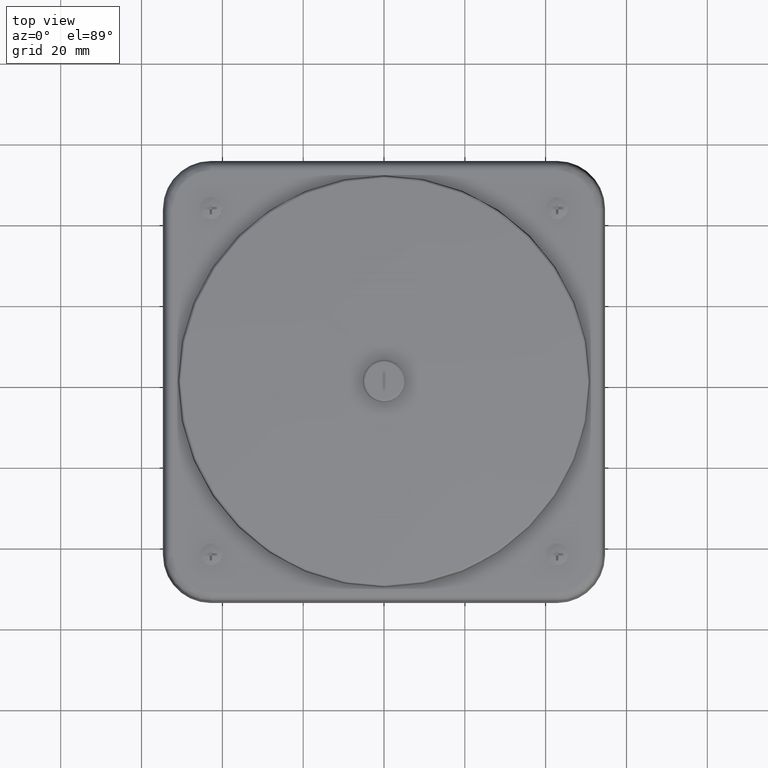
[diagram: clean part render]
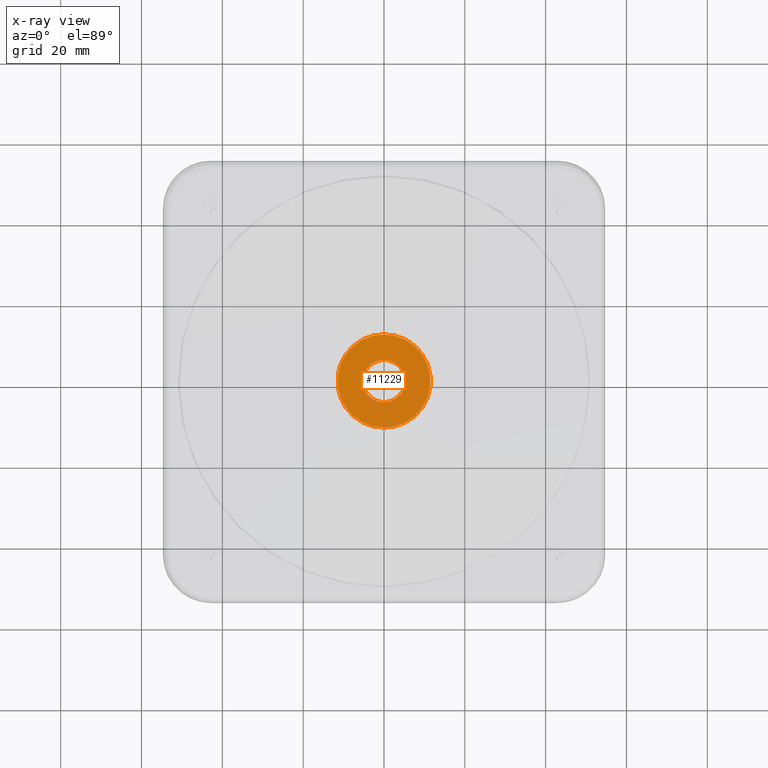
[diagram: x-ray — body ghosted, one internal face saturated and labeled with its STEP entity id]
A machine part, top view, then the same camera in x-ray: the body is ghosted and one INTERNAL B-rep face — a face not visible from any outside direction — is saturated and labeled: STEP entity #11229.
In plain terms, the highlighted planar face has unit normal (0, 0, 1).
Its self-contained STEP definition (entity closure, byte-faithful):
#162 = AXIS2_PLACEMENT_3D ( 'NONE', #4497, #7885, #12897 ) ;
#2699 = EDGE_LOOP ( 'NONE', ( #18174, #11451 ) ) ;
#2830 = DIRECTION ( 'NONE',  ( 1.000000000000000000, 0.000000000000000000, 0.000000000000000000 ) ) ;
#3633 = EDGE_CURVE ( 'NONE', #6493, #6041, #7520, .T. ) ;
#4132 = CARTESIAN_POINT ( 'NONE',  ( -2.731847993664263613E-15, -5.463695987328543200E-16, 2.559339538721059348 ) ) ;
#4497 = CARTESIAN_POINT ( 'NONE',  ( -2.731847993666074838E-15, -5.435836013389566810E-16, 2.559339538721059348 ) ) ;
#4888 = AXIS2_PLACEMENT_3D ( 'NONE', #13885, #10374, #13770 ) ;
#5012 = CARTESIAN_POINT ( 'NONE',  ( 0.2058933543126763577, 2.825358857238343151E-15, 2.559339538721795204 ) ) ;
#6041 = VERTEX_POINT ( 'NONE', #19875 ) ;
#6493 = VERTEX_POINT ( 'NONE', #14007 ) ;
#7520 = CIRCLE ( 'NONE', #162, 0.4544527542132086317 ) ;
#7580 = DIRECTION ( 'NONE',  ( 0.000000000000000000, 0.000000000000000000, -1.000000000000000000 ) ) ;
#7885 = DIRECTION ( 'NONE',  ( 1.195140789863510099E-25, -1.836909530700119911E-16, 1.000000000000000000 ) ) ;
#9393 = DIRECTION ( 'NONE',  ( 0.000000000000000000, 0.000000000000000000, -1.000000000000000000 ) ) ;
#9801 = EDGE_CURVE ( 'NONE', #6041, #6493, #11493, .T. ) ;
#10099 = CARTESIAN_POINT ( 'NONE',  ( -0.2058933543126819643, 2.800144193505869651E-15, 2.559339538721795204 ) ) ;
#10374 = DIRECTION ( 'NONE',  ( 1.195140789863510099E-25, -1.836909530700119911E-16, 1.000000000000000000 ) ) ;
#11229 = ADVANCED_FACE ( 'NONE', ( #15734, #14080 ), #19150, .T. ) ;
#11451 = ORIENTED_EDGE ( 'NONE', *, *, #3633, .T. ) ;
#11485 = ORIENTED_EDGE ( 'NONE', *, *, #13769, .T. ) ;
#11493 = CIRCLE ( 'NONE', #4888, 0.4544527542132086317 ) ;
#12897 = DIRECTION ( 'NONE',  ( 0.000000000000000000, 1.000000000000000000, 0.000000000000000000 ) ) ;
#13326 = ORIENTED_EDGE ( 'NONE', *, *, #13431, .T. ) ;
#13431 = EDGE_CURVE ( 'NONE', #16602, #17872, #15978, .T. ) ;
#13769 = EDGE_CURVE ( 'NONE', #17872, #16602, #19158, .T. ) ;
#13770 = DIRECTION ( 'NONE',  ( 0.000000000000000000, 1.000000000000000000, 0.000000000000000000 ) ) ;
#13885 = CARTESIAN_POINT ( 'NONE',  ( -2.731847993666074838E-15, -5.435836013389566810E-16, 2.559339538721059348 ) ) ;
#14007 = CARTESIAN_POINT ( 'NONE',  ( -2.956814883576456901E-10, 0.4544527542132086317, 2.559339538721059348 ) ) ;
#14080 = FACE_BOUND ( 'NONE', #19720, .T. ) ;
#14459 = CARTESIAN_POINT ( 'NONE',  ( -2.797412345512204431E-15, 2.800144193505869651E-15, 2.559339538721795204 ) ) ;
#15536 = AXIS2_PLACEMENT_3D ( 'NONE', #4132, #20007, #2830 ) ;
#15734 = FACE_OUTER_BOUND ( 'NONE', #2699, .T. ) ;
#15978 = CIRCLE ( 'NONE', #16671, 0.2058933543126791610 ) ;
#16219 = DIRECTION ( 'NONE',  ( -1.000000000000000000, 0.000000000000000000, 0.000000000000000000 ) ) ;
#16602 = VERTEX_POINT ( 'NONE', #5012 ) ;
#16671 = AXIS2_PLACEMENT_3D ( 'NONE', #19395, #9393, #21038 ) ;
#17872 = VERTEX_POINT ( 'NONE', #10099 ) ;
#18174 = ORIENTED_EDGE ( 'NONE', *, *, #9801, .T. ) ;
#19150 = PLANE ( 'NONE',  #15536 ) ;
#19158 = CIRCLE ( 'NONE', #20195, 0.2058933543126791610 ) ;
#19395 = CARTESIAN_POINT ( 'NONE',  ( -2.797412345512204431E-15, 2.800144193505869651E-15, 2.559339538721795204 ) ) ;
#19720 = EDGE_LOOP ( 'NONE', ( #11485, #13326 ) ) ;
#19875 = CARTESIAN_POINT ( 'NONE',  ( 2.956759690072473427E-10, -0.4544527542132097420, 2.559339538721059348 ) ) ;
#20007 = DIRECTION ( 'NONE',  ( 0.000000000000000000, 0.000000000000000000, 1.000000000000000000 ) ) ;
#20195 = AXIS2_PLACEMENT_3D ( 'NONE', #14459, #7580, #16219 ) ;
#21038 = DIRECTION ( 'NONE',  ( -1.000000000000000000, 0.000000000000000000, 0.000000000000000000 ) ) ;